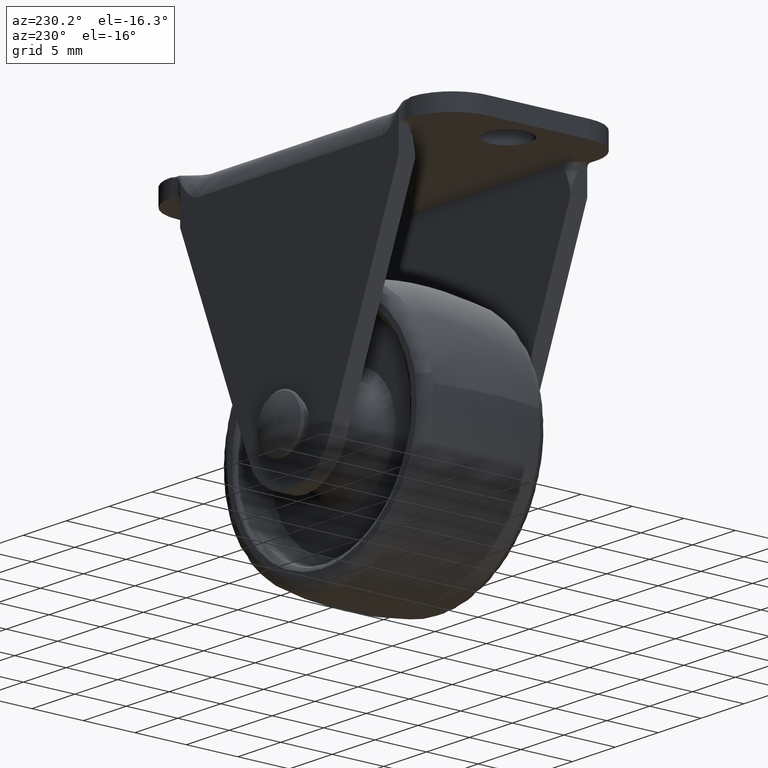
[diagram: clean part render]
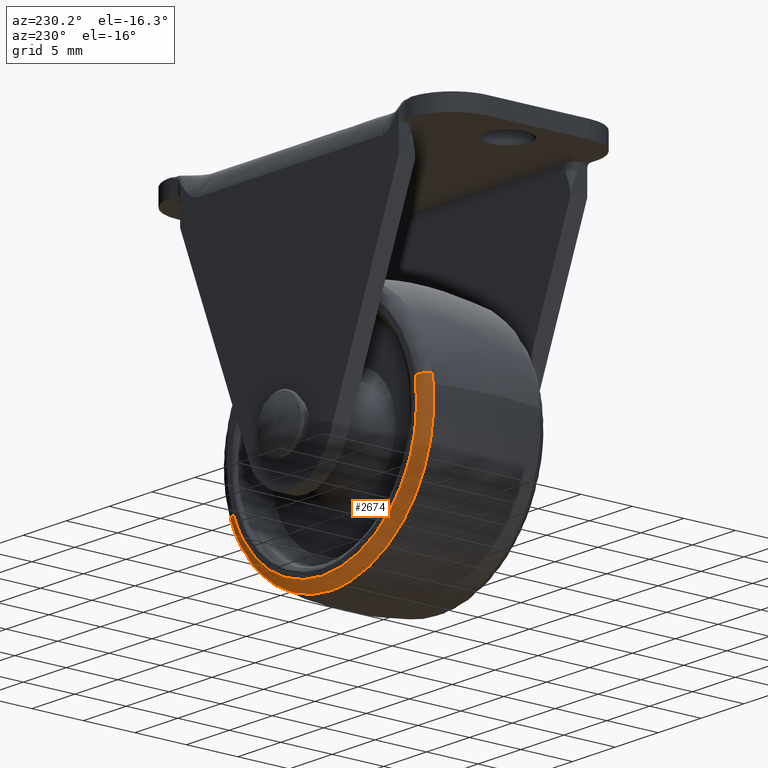
[diagram: same view with one face highlighted and labeled with its STEP entity id]
A machine part, auxiliary view. The second image highlights one B-rep face of the part: STEP entity #2674.
In plain terms, the highlighted face is a freeform B-spline surface patch.
Its self-contained STEP definition (entity closure, byte-faithful):
#2475=CARTESIAN_POINT('',(10.340959487457340,6.000000000000016,-3.938854596488066));
#2476=VERTEX_POINT('',#2475);
#2494=CARTESIAN_POINT('',(-10.869709442348510,6.000000000000016,2.073507971405101));
#2495=VERTEX_POINT('',#2494);
#2509=CARTESIAN_POINT('',(-11.837287781918180,5.172407707380526,2.258083410997876));
#2510=VERTEX_POINT('',#2509);
#2511=CARTESIAN_POINT('',(-10.869709442348505,6.000000000000017,2.073507971405101));
#2512=CARTESIAN_POINT('',(-11.695001249424662,6.000000288409980,2.230940803286638));
#2513=CARTESIAN_POINT('',(-11.837287781918183,5.172407707380526,2.258083410997875));
#2521=(BOUNDED_CURVE()B_SPLINE_CURVE(2,(#2511,#2512,#2513),.UNSPECIFIED.,.F.,.U.)B_SPLINE_CURVE_WITH_KNOTS((3,3),(-1.699374807877942,-0.297732268412829),.UNSPECIFIED.)CURVE()GEOMETRIC_REPRESENTATION_ITEM()RATIONAL_B_SPLINE_CURVE((0.891309091167586,0.682751535879277,0.892171777512070))REPRESENTATION_ITEM(''));
#2522=EDGE_CURVE('',#2495,#2510,#2521,.T.);
#2539=CARTESIAN_POINT('',(11.261469757784759,5.172411408221732,-4.289475456486795));
#2540=VERTEX_POINT('',#2539);
#2556=CARTESIAN_POINT('',(10.340959487457344,6.000000000000016,-3.938854596488066));
#2557=CARTESIAN_POINT('',(11.126102480497369,6.000000289551665,-4.237914281427226));
#2558=CARTESIAN_POINT('',(11.261469757784758,5.172411408221732,-4.289475456486795));
#2566=(BOUNDED_CURVE()B_SPLINE_CURVE(2,(#2556,#2557,#2558),.UNSPECIFIED.,.F.,.U.)B_SPLINE_CURVE_WITH_KNOTS((3,3),(-1.699374809359117,-0.297736412820142),.UNSPECIFIED.)CURVE()GEOMETRIC_REPRESENTATION_ITEM()RATIONAL_B_SPLINE_CURVE((0.836173559894048,0.640517754290109,0.836981719044426))REPRESENTATION_ITEM(''));
#2567=EDGE_CURVE('',#2476,#2540,#2566,.T.);
#2572=CARTESIAN_POINT('',(-10.807346646368314,5.997982622506305,2.061611631707368));
#2573=CARTESIAN_POINT('',(-12.868958278075681,5.997982622506306,-8.745735014660948));
#2574=CARTESIAN_POINT('',(-2.061611631707368,5.997982622506305,-10.807346646368314));
#2575=CARTESIAN_POINT('',(6.998514178604234,5.997982622506307,-12.535658078069011));
#2576=CARTESIAN_POINT('',(10.281630289809197,5.997982622506305,-3.916256201838376));
#2577=CARTESIAN_POINT('',(-11.743304860786154,6.058598223127341,2.240155209957842));
#2578=CARTESIAN_POINT('',(-13.983460070743998,6.058598223127341,-9.503149650828313));
#2579=CARTESIAN_POINT('',(-2.240155209957844,6.058598223127341,-11.743304860786154));
#2580=CARTESIAN_POINT('',(7.604612701074181,6.058598223127343,-13.621294778289482));
#2581=CARTESIAN_POINT('',(11.172059424937196,6.058598223127341,-4.255419206580816));
#2582=CARTESIAN_POINT('',(-11.846080934607070,5.109586874822790,2.259760794583151));
#2583=CARTESIAN_POINT('',(-14.105841729190217,5.109586874822790,-9.586320140023915));
#2584=CARTESIAN_POINT('',(-2.259760794583151,5.109586874822790,-11.846080934607070));
#2585=CARTESIAN_POINT('',(7.671167409958128,5.109586874822790,-13.740506807123422));
#2586=CARTESIAN_POINT('',(11.269836023416142,5.109586874822790,-4.292662153408752));
#2594=(BOUNDED_SURFACE()B_SPLINE_SURFACE(2,2,((#2572,#2577,#2582),(#2573,#2578,#2583),(#2574,#2579,#2584),(#2575,#2580,#2585),(#2576,#2581,#2586)),.UNSPECIFIED.,.F.,.F.,.U.)B_SPLINE_SURFACE_WITH_KNOTS((3,2,3),(3,3),(0.0,19.981150647913172,37.564563218076763),(0.0,1.602893417369274),.UNSPECIFIED.)GEOMETRIC_REPRESENTATION_ITEM()RATIONAL_B_SPLINE_SURFACE(((0.913187008565969,0.660830577786375,0.914135775917543),(0.645720726248455,0.467277782768170,0.646391606076521),(0.913187008565969,0.660830577786375,0.914135775917543),(0.677816680126556,0.490504118170355,0.678520906457444),(0.856698129740510,0.619952227478530,0.857588207247119)))REPRESENTATION_ITEM('')SURFACE());
#2595=CARTESIAN_POINT('',(0.0,6.0,-11.065713650934240));
#2596=VERTEX_POINT('',#2595);
#2597=CARTESIAN_POINT('',(0.0,6.0,-11.065713650934240));
#2598=CARTESIAN_POINT('',(7.626350499367398,6.0,-11.065713650934242));
#2599=CARTESIAN_POINT('',(10.340959487457344,6.000000000000016,-3.938854596488066));
#2607=(BOUNDED_CURVE()B_SPLINE_CURVE(2,(#2597,#2598,#2599),.UNSPECIFIED.,.F.,.U.)B_SPLINE_CURVE_WITH_KNOTS((3,3),(0.0,0.189552769334350),.UNSPECIFIED.)CURVE()GEOMETRIC_REPRESENTATION_ITEM()RATIONAL_B_SPLINE_CURVE((1.0,0.777925117018633,0.892609506587025))REPRESENTATION_ITEM(''));
#2608=EDGE_CURVE('',#2596,#2476,#2607,.T.);
#2609=ORIENTED_EDGE('',*,*,#2608,.T.);
#2610=ORIENTED_EDGE('',*,*,#2567,.T.);
#2611=CARTESIAN_POINT('',(0.0,5.172413742886881,-12.050738333794740));
#2612=VERTEX_POINT('',#2611);
#2613=CARTESIAN_POINT('',(0.0,5.172413742886881,-12.050738333794740));
#2614=CARTESIAN_POINT('',(8.305216816198701,5.172413742886880,-12.050738333794742));
#2615=CARTESIAN_POINT('',(11.261469757784756,5.172411408221734,-4.289475456486795));
#2623=(BOUNDED_CURVE()B_SPLINE_CURVE(2,(#2613,#2614,#2615),.UNSPECIFIED.,.F.,.U.)B_SPLINE_CURVE_WITH_KNOTS((3,3),(0.0,0.189552764179595),.UNSPECIFIED.)CURVE()GEOMETRIC_REPRESENTATION_ITEM()RATIONAL_B_SPLINE_CURVE((1.0,0.777925123057805,0.892609500349501))REPRESENTATION_ITEM(''));
#2624=EDGE_CURVE('',#2612,#2540,#2623,.T.);
#2625=ORIENTED_EDGE('',*,*,#2624,.F.);
#2626=CARTESIAN_POINT('',(-11.970140016315360,5.172407741140701,1.391426497640320));
#2627=VERTEX_POINT('',#2626);
#2628=CARTESIAN_POINT('',(-11.970140016315366,5.172407741140701,1.391426497640319));
#2629=CARTESIAN_POINT('',(-12.050739350369765,5.172407895932865,0.698047693950764));
#2630=CARTESIAN_POINT('',(-12.050739320147381,5.172408069760571,0.000000114655065));
#2631=CARTESIAN_POINT('',(-12.050738798403476,5.172411070633660,-12.050738279787948));
#2632=CARTESIAN_POINT('',(0.0,5.172413742886881,-12.050738333794740));
#2640=(BOUNDED_CURVE()B_SPLINE_CURVE(2,(#2628,#2629,#2630,#2631,#2632),.UNSPECIFIED.,.F.,.U.)B_SPLINE_CURVE_WITH_KNOTS((3,2,3),(0.730000040107683,0.750000000000000,1.0),.UNSPECIFIED.)CURVE()GEOMETRIC_REPRESENTATION_ITEM()RATIONAL_B_SPLINE_CURVE((0.956886197132318,0.976568589483997,1.0,0.707106781186548,1.0))REPRESENTATION_ITEM(''));
#2641=EDGE_CURVE('',#2627,#2612,#2640,.T.);
#2642=ORIENTED_EDGE('',*,*,#2641,.F.);
#2643=CARTESIAN_POINT('',(-11.837287781918182,5.172407707380526,2.258083410997875));
#2644=CARTESIAN_POINT('',(-11.919488185877174,5.172407711004230,1.827173036833578));
#2645=CARTESIAN_POINT('',(-11.970140016315366,5.172407741140701,1.391426497640319));
#2653=(BOUNDED_CURVE()B_SPLINE_CURVE(2,(#2643,#2644,#2645),.UNSPECIFIED.,.F.,.U.)B_SPLINE_CURVE_WITH_KNOTS((3,3),(0.717838633480265,0.730000040107683),.UNSPECIFIED.)CURVE()GEOMETRIC_REPRESENTATION_ITEM()RATIONAL_B_SPLINE_CURVE((0.934335794707370,0.944917894291815,0.956886197132318))REPRESENTATION_ITEM(''));
#2654=EDGE_CURVE('',#2510,#2627,#2653,.T.);
#2655=ORIENTED_EDGE('',*,*,#2654,.F.);
#2656=ORIENTED_EDGE('',*,*,#2522,.F.);
#2657=CARTESIAN_POINT('',(-10.869709442348510,6.000000000000017,2.073507971405101));
#2658=CARTESIAN_POINT('',(-11.065713650934240,6.0,1.046017911998301));
#2659=CARTESIAN_POINT('',(-11.065713650934240,6.0,-8.061993E-016));
#2660=CARTESIAN_POINT('',(-11.065713650934240,6.0,-11.065713650934240));
#2661=CARTESIAN_POINT('',(0.0,6.0,-11.065713650934240));
#2669=(BOUNDED_CURVE()B_SPLINE_CURVE(2,(#2657,#2658,#2659,#2660,#2661),.UNSPECIFIED.,.F.,.U.)B_SPLINE_CURVE_WITH_KNOTS((3,2,3),(0.717838633736777,0.750000000000000,1.0),.UNSPECIFIED.)CURVE()GEOMETRIC_REPRESENTATION_ITEM()RATIONAL_B_SPLINE_CURVE((0.934335795153772,0.962320615654905,1.0,0.707106781186547,1.0))REPRESENTATION_ITEM(''));
#2670=EDGE_CURVE('',#2495,#2596,#2669,.T.);
#2671=ORIENTED_EDGE('',*,*,#2670,.T.);
#2672=EDGE_LOOP('',(#2609,#2610,#2625,#2642,#2655,#2656,#2671));
#2673=FACE_OUTER_BOUND('',#2672,.T.);
#2674=ADVANCED_FACE('',(#2673),#2594,.T.);